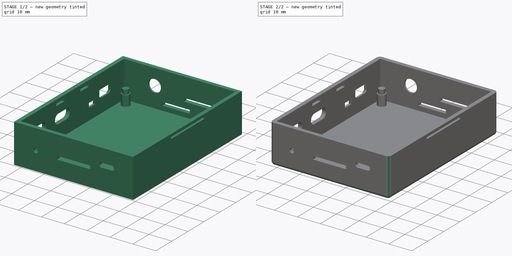
[diagram: build sequence overview — one tinted view per stage of 2, left to right]
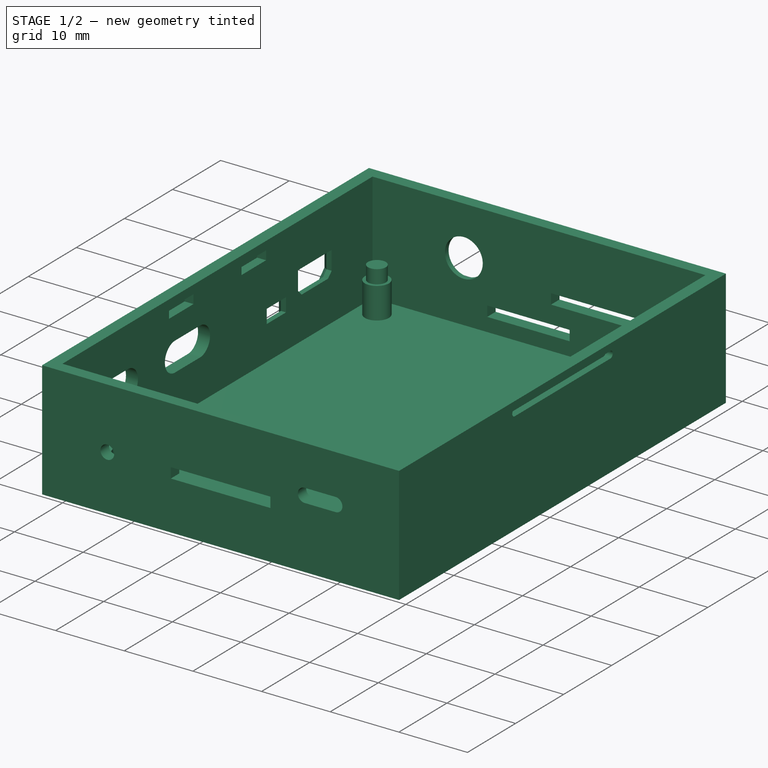
[diagram: stage 1 of 2 — iso view after this stage's code; geometry added in this stage tinted green]
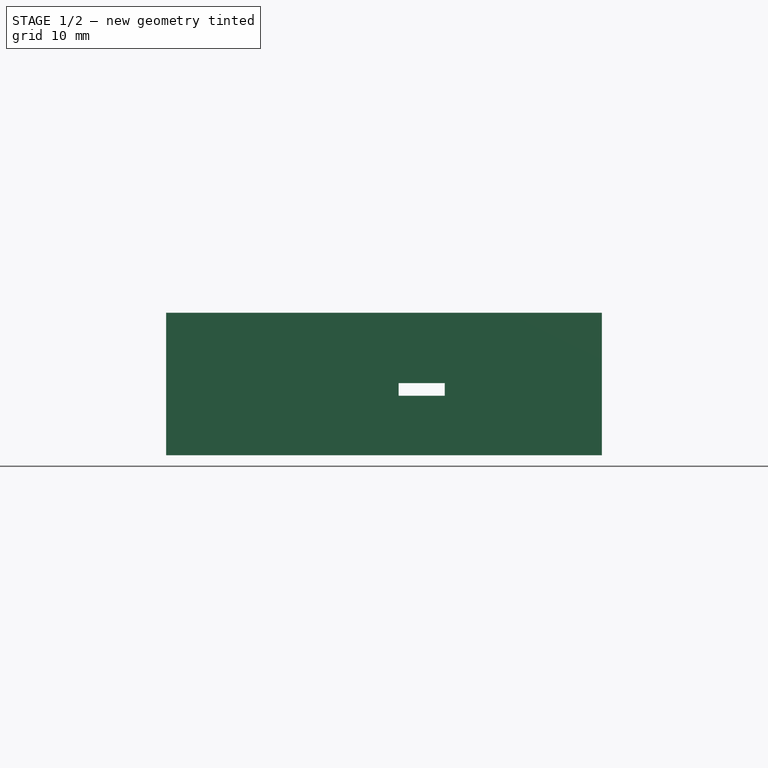
[diagram: stage 1 of 2 — front view after this stage's code; geometry added in this stage tinted green]
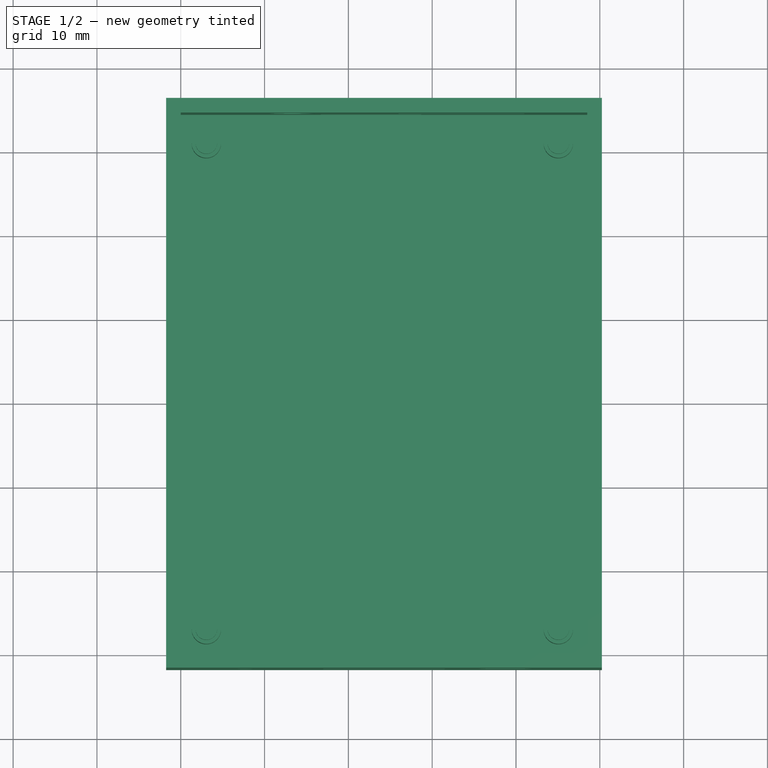
[diagram: stage 1 of 2 — top view after this stage's code; geometry added in this stage tinted green]
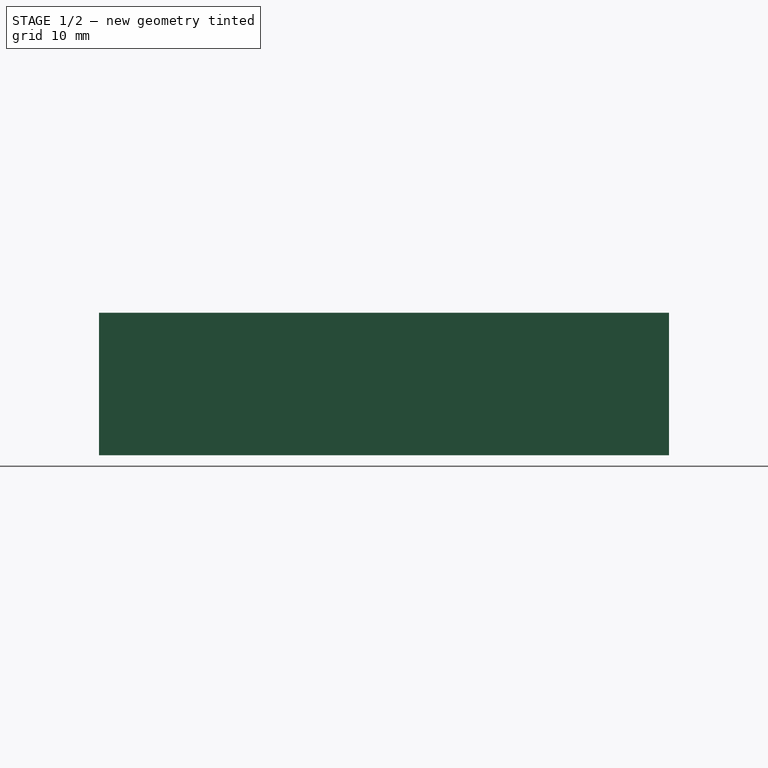
[diagram: stage 1 of 2 — right view after this stage's code; geometry added in this stage tinted green]
FCSTD DOCUMENT  (FreeCAD 0.18R4 (GitTag))
Label: coral_dev_mini_bottom
License: All rights reserved
LicenseURL: http://en.wikipedia.org/wiki/All_rights_reserved
objects: Sketcher::SketchObject×10, PartDesign::Pocket×7, PartDesign::Pad×3, PartDesign::Body×1, PartDesign::Chamfer×1, PartDesign::Fillet×1
note: 33 computed .brp shape members not serialized (recipe doc carries the construction recipe); baked Part::Feature solids carry a one-line shape summary decoded from their .brp

FEATURE [Sketcher::SketchObject] Sketch
  MapMode = 5
  Support = -> [XY_Plane]
  sketch-geometry (4):
    g0: LineSegment StartX=-1.75 StartY=66.25 StartZ=0 EndX=50.25 EndY=66.25 EndZ=0
    g1: LineSegment StartX=50.25 StartY=66.25 StartZ=0 EndX=50.25 EndY=-1.75 EndZ=0
    g2: LineSegment StartX=50.25 StartY=-1.75 StartZ=0 EndX=-1.75 EndY=-1.75 EndZ=0
    g3: LineSegment StartX=-1.75 StartY=-1.75 StartZ=0 EndX=-1.75 EndY=66.25 EndZ=0
  constraints (12):
    c: Coincident(g0,g1)
    c: Coincident(g1,g2)
    c: Coincident(g2,g3)
    c: Coincident(g3,g0)
    c: Horizontal(g0)
    c: Horizontal(g2)
    c: Vertical(g1)
    c: Vertical(g3)
    c: Distance(g1) = 68
    c: Distance(g0) = 52
    c: DistanceX(g2,g-1) = 1.75
    c: DistanceY(g2,g-1) = 1.75
FEATURE [PartDesign::Pad] Pad  label="outer_shell"
  Length = 17
  Length2 = 100
  Profile = -> Sketch
  Type = 0
FEATURE [Sketcher::SketchObject] Sketch001  label="inner_pocket001"
  MapMode = 5
  Placement = pos=(0,0,17) rot=(0,0,1;0rad)
  sketch-geometry (4):
    g0: LineSegment StartX=0 StartY=0 StartZ=0 EndX=48.5 EndY=0 EndZ=0
    g1: LineSegment StartX=48.5 StartY=0 StartZ=0 EndX=48.5 EndY=64.5 EndZ=0
    g2: LineSegment StartX=48.5 StartY=64.5 StartZ=0 EndX=0 EndY=64.5 EndZ=0
    g3: LineSegment StartX=0 StartY=64.5 StartZ=0 EndX=0 EndY=0 EndZ=0
  constraints (11):
    c: Coincident(g0,g1)
    c: Coincident(g1,g2)
    c: Coincident(g2,g3)
    c: Coincident(g3,g0)
    c: Horizontal(g0)
    c: Horizontal(g2)
    c: Vertical(g1)
    c: Vertical(g3)
    c: Coincident(g0,g-1)
    c: Distance(g1) = 64.5
    c: Distance(g2) = 48.5
FEATURE [PartDesign::Pocket] Pocket  label="inner_pocket"
  BaseFeature = -> Pad
  Length = 16
  Length2 = 100
  Profile = -> Sketch001
  Type = 0
FEATURE [Sketcher::SketchObject] Sketch002  label="standoffs_4x"
  MapMode = 5
  Placement = pos=(0,0,1) rot=(0,0,1;0rad)
  Support = -> [Pocket]
  sketch-geometry (4):
    g0: Circle CenterX=3.05 CenterY=3.05 CenterZ=0 NormalX=0 NormalY=0 NormalZ=1 AngleXU=0 Radius=1.75
    g1: Circle CenterX=3.05 CenterY=61.05 CenterZ=0 NormalX=0 NormalY=0 NormalZ=1 AngleXU=0 Radius=1.75
    g2: Circle CenterX=45.05 CenterY=3.05 CenterZ=0 NormalX=0 NormalY=0 NormalZ=1 AngleXU=0 Radius=1.75
    g3: Circle CenterX=45.05 CenterY=61.05 CenterZ=0 NormalX=0 NormalY=0 NormalZ=1 AngleXU=0 Radius=1.75
  constraints (12):
    c: Radius(g0) = 1.75
    c: Equal(g0,g1) = 1.75
    c: DistanceX(g-1,g0) = 3.05
    c: DistanceY(g-1,g0) = 3.05
    c: DistanceX(g0,g2) = 42
    c: DistanceY(g-1,g2) = 3.05
    c: DistanceY(g0,g1) = 58
    c: Equal(g0,g2)
    c: DistanceX(g-1,g1) = 3.05
    c: DistanceX(g1,g3) = 42
    c: DistanceY(g1,g3) = 0
    c: Equal(g1,g3)
FEATURE [PartDesign::Pad] Pad001  label="stadoffs_4x"
  BaseFeature = -> Pocket
  Length = 4.55
  Length2 = 100
  Profile = -> Sketch002
  Type = 0
FEATURE [Sketcher::SketchObject] Sketch003  label="screw_hole_stands"
  MapMode = 5
  Placement = pos=(0,0,1) rot=(0,0,1;0rad)
  Support = -> [Pad001]
  sketch-geometry (4):
    g0: Circle CenterX=3.05 CenterY=61.05 CenterZ=0 NormalX=0 NormalY=0 NormalZ=1 AngleXU=0 Radius=1.3
    g1: Circle CenterX=45.05 CenterY=61.05 CenterZ=0 NormalX=0 NormalY=0 NormalZ=1 AngleXU=0 Radius=1.3
    g2: Circle CenterX=3.05 CenterY=3.05 CenterZ=0 NormalX=0 NormalY=0 NormalZ=1 AngleXU=0 Radius=1.3
    g3: Circle CenterX=45.05 CenterY=3.05 CenterZ=0 NormalX=0 NormalY=0 NormalZ=1 AngleXU=0 Radius=1.3
  constraints (12):
    c: Radius(g0) = 1.3
    c: DistanceX(g-1,g0) = 3.05
    c: Equal(g0,g1) = 1.35
    c: Equal(g0,g2) = 1.35
    c: Equal(g0,g3) = 1.35
    c: DistanceX(g0,g1) = 42
    c: DistanceY(g1,g0) = 0
    c: DistanceY(g2,g0) = 58
    c: DistanceX(g-1,g2) = 3.05
    c: DistanceX(g2,g3) = 42
    c: DistanceY(g2,g3) = 0
    c: DistanceY(g-1,g2) = 3.05
FEATURE [PartDesign::Pad] Pad002  label="screw_stands_4x"
  BaseFeature = -> Pad001
  Length = 6.55
  Length2 = 100
  Profile = -> Sketch003
  Type = 0
FEATURE [Sketcher::SketchObject] Sketch004  label="USB_C"
  MapMode = 5
  Placement = pos=(-1.75,0,0) rot=(0.57735,-0.57735,-0.57735;2.0944rad)
  Support = -> [Pad002]
  sketch-geometry (12):
    g0: ArcOfCircle CenterX=-28.6 CenterY=9 CenterZ=0 NormalX=0 NormalY=0 NormalZ=1 AngleXU=0 Radius=2.1 StartAngle=1.5708 EndAngle=4.71239
    g1: ArcOfCircle CenterX=-23.4 CenterY=9 CenterZ=0 NormalX=0 NormalY=0 NormalZ=1 AngleXU=0 Radius=2.1 StartAngle=4.71239 EndAngle=7.85398
    g2: LineSegment StartX=-28.6 StartY=6.9 StartZ=0 EndX=-23.4 EndY=6.9 EndZ=0
    g3: LineSegment StartX=-28.6 StartY=11.1 StartZ=0 EndX=-23.4 EndY=11.1 EndZ=0
    g4: ArcOfCircle CenterX=-13.6 CenterY=9 CenterZ=0 NormalX=0 NormalY=0 NormalZ=1 AngleXU=0 Radius=2.1 StartAngle=1.5708 EndAngle=4.71239
    g5: ArcOfCircle CenterX=-8.4 CenterY=9 CenterZ=0 NormalX=0 NormalY=0 NormalZ=1 AngleXU=0 Radius=2.1 StartAngle=4.71239 EndAngle=7.85398
    g6: LineSegment StartX=-13.6 StartY=6.9 StartZ=0 EndX=-8.4 EndY=6.9 EndZ=0
    g7: LineSegment StartX=-13.6 StartY=11.1 StartZ=0 EndX=-8.4 EndY=11.1 EndZ=0
    g8: LineSegment StartX=-42.5 StartY=8 StartZ=0 EndX=-46.5 EndY=8 EndZ=0
    g9: LineSegment StartX=-46.5 StartY=8 StartZ=0 EndX=-46.5 EndY=6 EndZ=0
    g10: LineSegment StartX=-46.5 StartY=6 StartZ=0 EndX=-42.5 EndY=6 EndZ=0
    g11: LineSegment StartX=-42.5 StartY=6 StartZ=0 EndX=-42.5 EndY=8 EndZ=0
  constraints (32):
    c: Tangent(g0,g3) = 1.5708
    c: Tangent(g0,g2) = -1.5708
    c: Tangent(g2,g1) = -1.5708
    c: Tangent(g3,g1) = 1.5708
    c: Horizontal(g2)
    c: Equal(g0,g1)
    c: DistanceY(g1,g1) = 4.2
    c: Distance(g2) = 5.2
    c: DistanceY(g-1,g1) = 9
    c: Tangent(g4,g7) = 1.5708
    c: Tangent(g4,g6) = -1.5708
    c: Tangent(g6,g5) = -1.5708
    c: Tangent(g7,g5) = 1.5708
    c: Horizontal(g6)
    c: Equal(g4,g5)
    c: Equal(g1,g5) = 4.2
    c: Equal(g2,g6) = 5.2
    c: DistanceY(g1,g4) = 0
    c: DistanceX(g1,g4) = 9.8
    c: DistanceX(g5,g-1) = 8.4
    c: Coincident(g8,g9)
    c: Coincident(g9,g10)
    c: Coincident(g10,g11)
    c: Coincident(g11,g8)
    c: Horizontal(g8)
    c: Horizontal(g10)
    c: Vertical(g9)
    c: Vertical(g11)
    c: Distance(g10) = 4
    c: Distance(g11) = 2
    c: DistanceX(g10,g-1) = 42.5
    c: DistanceY(g-1,g10) = 6
FEATURE [PartDesign::Pocket] Pocket001  label="USB_PWR"
  BaseFeature = -> Pad002
  Length = 5
  Length2 = 100
  Profile = -> Sketch004
  Type = 0
FEATURE [Sketcher::SketchObject] Sketch005  label="miniHDMI"
  MapMode = 5
  Placement = pos=(-1.75,0,0) rot=(0.57735,-0.57735,-0.57735;2.0944rad)
  Support = -> [Pocket001]
  sketch-geometry (6):
    g0: LineSegment StartX=-56 StartY=10.6 StartZ=0 EndX=-49 EndY=10.6 EndZ=0
    g1: LineSegment StartX=-49.75 StartY=7.1 StartZ=0 EndX=-55.25 EndY=7.1 EndZ=0
    g2: LineSegment StartX=-56 StartY=10.6 StartZ=0 EndX=-56 EndY=7.85 EndZ=0
    g3: LineSegment StartX=-55.25 StartY=7.1 StartZ=0 EndX=-56 EndY=7.85 EndZ=0
    g4: LineSegment StartX=-49 StartY=10.6 StartZ=0 EndX=-49 EndY=7.85 EndZ=0
    g5: LineSegment StartX=-49 StartY=7.85 StartZ=0 EndX=-49.75 EndY=7.1 EndZ=0
  constraints (18):
    c: Horizontal(g0)
    c: Horizontal(g1)
    c: Coincident(g2,g0)
    c: Vertical(g2)
    c: Coincident(g3,g1)
    c: Coincident(g3,g2)
    c: Coincident(g4,g0)
    c: Vertical(g4)
    c: Coincident(g5,g4)
    c: Coincident(g5,g1)
    c: Angle(g4,g5) = 2.35619
    c: Angle(g3,g2) = 2.35619
    c: DistanceX(g1,g4) = 0.75
    c: DistanceX(g2,g1) = 0.75
    c: Distance(g0) = 7
    c: DistanceY(g1,g0) = 3.5
    c: DistanceY(g-1,g1) = 7.1
    c: DistanceX(g4,g-1) = 49
FEATURE [PartDesign::Pocket] Pocket002  label="mini_hdmi"
  BaseFeature = -> Pocket001
  Length = 5
  Length2 = 100
  Profile = -> Sketch005
  Type = 0
FEATURE [Sketcher::SketchObject] Sketch006  label="audio_sd"
  MapMode = 5
  Placement = pos=(0,66.25,0) rot=(0,0.707107,0.707107;3.14159rad)
  Support = -> [Pocket002]
  sketch-geometry (9):
    g0: Circle CenterX=-13.3 CenterY=9.85 CenterZ=0 NormalX=0 NormalY=0 NormalZ=1 AngleXU=0 Radius=2.75
    g1: LineSegment StartX=-16.7 StartY=4.5 StartZ=0 EndX=-28.7 EndY=4.5 EndZ=0
    g2: LineSegment StartX=-28.7 StartY=4.5 StartZ=0 EndX=-28.7 EndY=3 EndZ=0
    g3: LineSegment StartX=-28.7 StartY=3 StartZ=0 EndX=-16.7 EndY=3 EndZ=0
    g4: LineSegment StartX=-16.7 StartY=3 StartZ=0 EndX=-16.7 EndY=4.5 EndZ=0
    g5: LineSegment StartX=-41 StartY=8.6 StartZ=0 EndX=-26 EndY=8.6 EndZ=0
    g6: LineSegment StartX=-26 StartY=8.6 StartZ=0 EndX=-26 EndY=7.1 EndZ=0
    g7: LineSegment StartX=-26 StartY=7.1 StartZ=0 EndX=-41 EndY=7.1 EndZ=0
    g8: LineSegment StartX=-41 StartY=7.1 StartZ=0 EndX=-41 EndY=8.6 EndZ=0
  constraints (27):
    c: Radius(g0) = 2.75
    c: DistanceY(g-1,g0) = 9.85
    c: DistanceX(g0,g-1) = 13.3
    c: Coincident(g1,g2)
    c: Coincident(g2,g3)
    c: Coincident(g3,g4)
    c: Coincident(g4,g1)
    c: Horizontal(g1)
    c: Horizontal(g3)
    c: Vertical(g2)
    c: Vertical(g4)
    c: Distance(g1) = 12
    c: Distance(g2) = 1.5
    c: DistanceX(g3,g-1) = 16.7
    c: DistanceY(g-1,g3) = 3
    c: Coincident(g5,g6)
    c: Coincident(g6,g7)
    c: Coincident(g7,g8)
    c: Coincident(g8,g5)
    c: Horizontal(g5)
    c: Horizontal(g7)
    c: Vertical(g6)
    c: Vertical(g8)
    c: DistanceX(g6,g-1) = 26
    c: Distance(g5) = 15
    c: Distance(g8) = 1.5
    c: DistanceY(g-1,g6) = 7.1
FEATURE [PartDesign::Pocket] Pocket003  label="audio_sd_slot"
  BaseFeature = -> Pocket002
  Length = 5
  Length2 = 100
  Profile = -> Sketch006
  Type = 0
FEATURE [Sketcher::SketchObject] Sketch009  label="latch"
  MapMode = 5
  Placement = pos=(50.25,0,0) rot=(0.57735,0.57735,0.57735;2.0944rad)
  sketch-geometry (4):
    g0: LineSegment StartX=22.3 StartY=16 StartZ=0 EndX=42.2 EndY=16 EndZ=0
    g1: LineSegment StartX=42.2 StartY=15 StartZ=0 EndX=22.3 EndY=15 EndZ=0
    g2: ArcOfCircle CenterX=22.3 CenterY=15.5 CenterZ=0 NormalX=0 NormalY=0 NormalZ=1 AngleXU=0 Radius=0.5 StartAngle=1.5708 EndAngle=4.71239
    g3: ArcOfCircle CenterX=42.2 CenterY=15.5 CenterZ=0 NormalX=0 NormalY=0 NormalZ=1 AngleXU=0 Radius=0.5 StartAngle=4.71239 EndAngle=7.85398
  constraints (14):
    c: Horizontal(g0)
    c: Horizontal(g1)
    c: Distance(g0) = 19.9
    c: DistanceY(g-1,g1) = 15
    c: DistanceX(g-1,g1) = 22.3
    c: Coincident(g2,g0)
    c: Coincident(g2,g1)
    c: Coincident(g3,g0)
    c: Coincident(g3,g1)
    c: Radius(g3) = 0.5
    c: Equal(g3,g2)
    c: DistanceX(g-1,g0) = 22.3
    c: DistanceX(g1,g2) = 0
    c: DistanceX(g3,g1) = 0
FEATURE [PartDesign::Body] Body
  Group = -> [Sketch,Pad,Sketch001,Sketch002,Sketch003,Sketch004,Pocket,Pad001,Pad002,Pocket001,Sketch005,Pocket002,Sketch006,Pocket003,Sketch007,Pocket004,Sketch008,Sketch009,Pocket006,Pocket007,Chamfer,Fillet]
  Origin = -> Origin
  Tip = -> Fillet
FEATURE [Sketcher::SketchObject] Sketch007  label="mic_camera_speaker"
  MapMode = 5
  Placement = pos=(0,-1.75,0) rot=(1,0,0;1.5708rad)
  Support = -> [Pocket007]
  sketch-geometry (9):
    g0: LineSegment StartX=17 StartY=8.6 StartZ=0 EndX=31.5 EndY=8.6 EndZ=0
    g1: LineSegment StartX=31.5 StartY=8.6 StartZ=0 EndX=31.5 EndY=7.1 EndZ=0
    g2: LineSegment StartX=31.5 StartY=7.1 StartZ=0 EndX=17 EndY=7.1 EndZ=0
    g3: LineSegment StartX=17 StartY=7.1 StartZ=0 EndX=17 EndY=8.6 EndZ=0
    g4: ArcOfCircle CenterX=36.5 CenterY=10.1 CenterZ=0 NormalX=0 NormalY=0 NormalZ=1 AngleXU=0 Radius=1 StartAngle=1.5708 EndAngle=4.71239
    g5: ArcOfCircle CenterX=41 CenterY=10.1 CenterZ=0 NormalX=0 NormalY=0 NormalZ=1 AngleXU=0 Radius=1 StartAngle=4.71239 EndAngle=7.85398
    g6: LineSegment StartX=36.5 StartY=9.1 StartZ=0 EndX=41 EndY=9.1 EndZ=0
    g7: LineSegment StartX=36.5 StartY=11.1 StartZ=0 EndX=41 EndY=11.1 EndZ=0
    g8: Circle CenterX=7.75 CenterY=8.1 CenterZ=0 NormalX=0 NormalY=0 NormalZ=1 AngleXU=0 Radius=1
  constraints (25):
    c: Coincident(g0,g1)
    c: Coincident(g1,g2)
    c: Coincident(g2,g3)
    c: Coincident(g3,g0)
    c: Horizontal(g0)
    c: Horizontal(g2)
    c: Vertical(g1)
    c: Vertical(g3)
    c: DistanceX(g-1,g2) = 17
    c: Distance(g1) = 1.5
    c: Distance(g2) = 14.5
    c: DistanceY(g-1,g2) = 7.1
    c: Tangent(g4,g7) = 1.5708
    c: Tangent(g4,g6) = -1.5708
    c: Tangent(g6,g5) = -1.5708
    c: Tangent(g7,g5) = 1.5708
    c: Horizontal(g6)
    c: Equal(g4,g5)
    c: Distance(g6) = 4.5
    c: DistanceY(g5,g5) = 2
    c: DistanceX(g-1,g5) = 41
    c: DistanceY(g-1,g5) = 10.1
    c: Radius(g8) = 1
    c: DistanceX(g-1,g8) = 7.75
    c: DistanceY(g-1,g8) = 8.1
FEATURE [PartDesign::Pocket] Pocket004  label="mic_cam_speaker"
  BaseFeature = -> Pocket003
  Length = 5
  Length2 = 100
  Profile = -> Sketch007
  Type = 0
FEATURE [Sketcher::SketchObject] Sketch008  label="lid_slots_x2"
  MapMode = 5
  Placement = pos=(0,0,0) rot=(0.57735,0.57735,0.57735;2.0944rad)
  Support = -> [Pocket006]
  sketch-geometry (8):
    g0: LineSegment StartX=22.15 StartY=15.75 StartZ=0 EndX=27.25 EndY=15.75 EndZ=0
    g1: LineSegment StartX=27.25 StartY=15.75 StartZ=0 EndX=27.25 EndY=14.45 EndZ=0
    g2: LineSegment StartX=27.25 StartY=14.45 StartZ=0 EndX=22.15 EndY=14.45 EndZ=0
    g3: LineSegment StartX=22.15 StartY=14.45 StartZ=0 EndX=22.15 EndY=15.75 EndZ=0
    g4: LineSegment StartX=37.25 StartY=15.75 StartZ=0 EndX=42.35 EndY=15.75 EndZ=0
    g5: LineSegment StartX=42.35 StartY=15.75 StartZ=0 EndX=42.35 EndY=14.45 EndZ=0
    g6: LineSegment StartX=42.35 StartY=14.45 StartZ=0 EndX=37.25 EndY=14.45 EndZ=0
    g7: LineSegment StartX=37.25 StartY=14.45 StartZ=0 EndX=37.25 EndY=15.75 EndZ=0
  constraints (24):
    c: Coincident(g0,g1)
    c: Coincident(g1,g2)
    c: Coincident(g2,g3)
    c: Coincident(g3,g0)
    c: Horizontal(g0)
    c: Horizontal(g2)
    c: Vertical(g1)
    c: Vertical(g3)
    c: Distance(g1) = 1.3
    c: Distance(g0) = 5.1
    c: Coincident(g4,g5)
    c: Coincident(g5,g6)
    c: Coincident(g6,g7)
    c: Coincident(g7,g4)
    c: Horizontal(g4)
    c: Horizontal(g6)
    c: Vertical(g5)
    c: Vertical(g7)
    c: Equal(g1,g5) = 1.6
    c: Equal(g0,g4) = 5.1
    c: DistanceX(g-1,g2) = 22.15
    c: DistanceX(g1,g6) = 10
    c: DistanceY(g4,g0) = 0
    c: DistanceY(g-1,g0) = 15.75
FEATURE [PartDesign::Pocket] Pocket006  label="lid_latch"
  BaseFeature = -> Pocket004
  Length = 1
  Length2 = 100
  Profile = -> Sketch009
  Type = 0
FEATURE [PartDesign::Pocket] Pocket007  label="lid_slots"
  BaseFeature = -> Pocket006
  Length = 1.3
  Length2 = 100
  Profile = -> Sketch008
  Type = 0
FEATURE [PartDesign::Chamfer] Chamfer
  Base = -> Pocket007 [Edge24,Edge25,Edge26,Edge21,Edge22,Edge23,Edge19,Edge17,Edge18,Edge20,Edge5]
  BaseFeature = -> Pocket007
  Size = 1
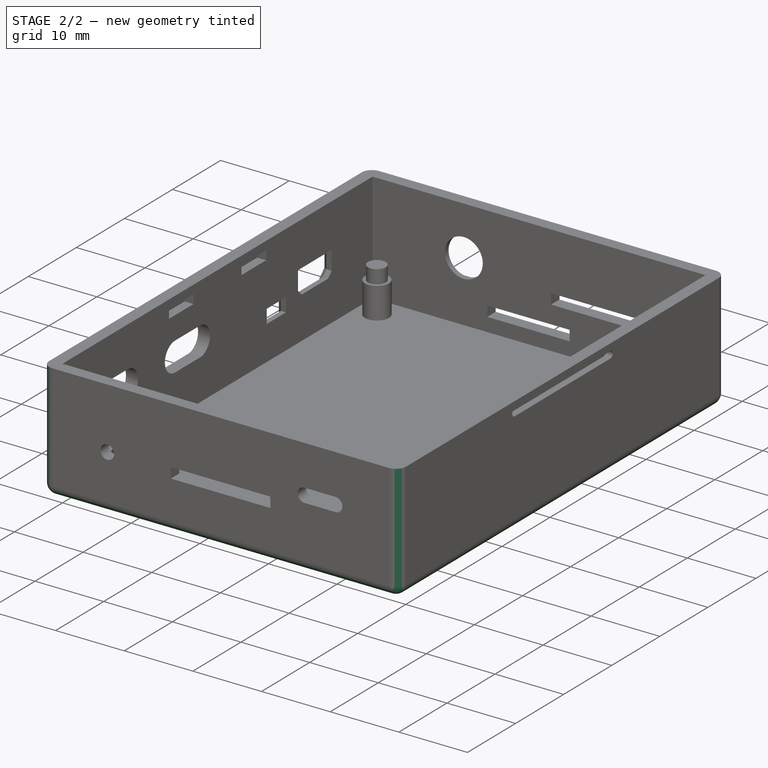
[diagram: stage 2 of 2 — iso view after this stage's code; geometry added in this stage tinted green]
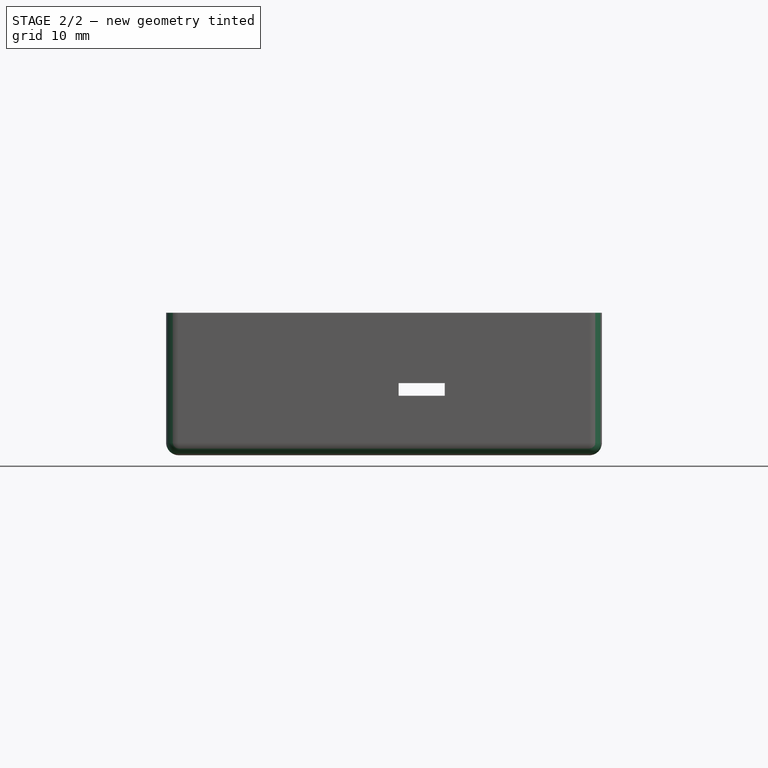
[diagram: stage 2 of 2 — front view after this stage's code; geometry added in this stage tinted green]
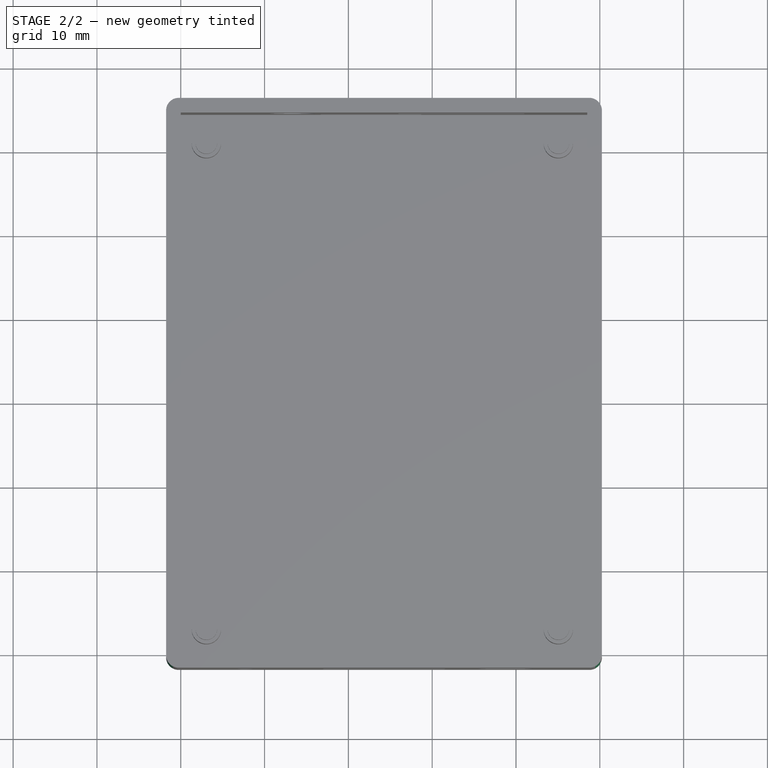
[diagram: stage 2 of 2 — top view after this stage's code; geometry added in this stage tinted green]
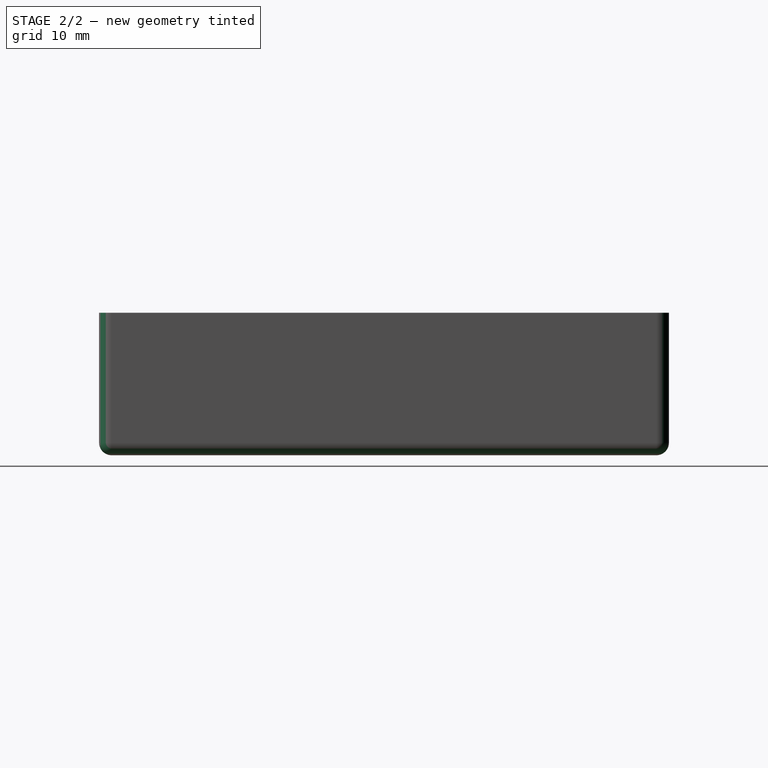
[diagram: stage 2 of 2 — right view after this stage's code; geometry added in this stage tinted green]
FEATURE [PartDesign::Fillet] Fillet
  Base = -> Chamfer [Edge2,Edge23,Edge3,Edge22,Edge38,Edge45,Edge37,Edge5]
  BaseFeature = -> Chamfer
  Radius = 1.5
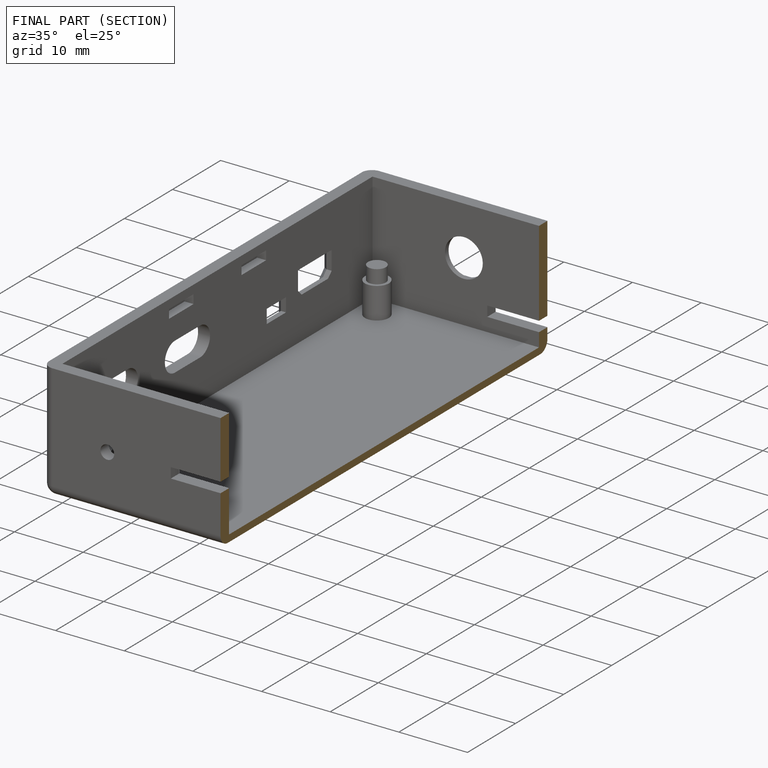
[diagram: finished part — half-section view (interior)]
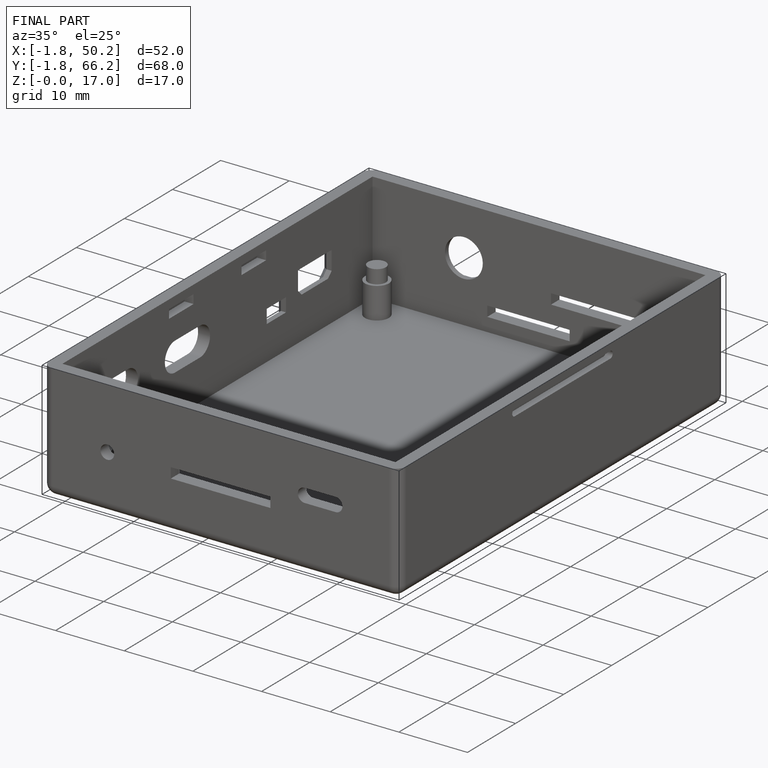
[diagram: finished part — iso view with bounding-box wireframe]
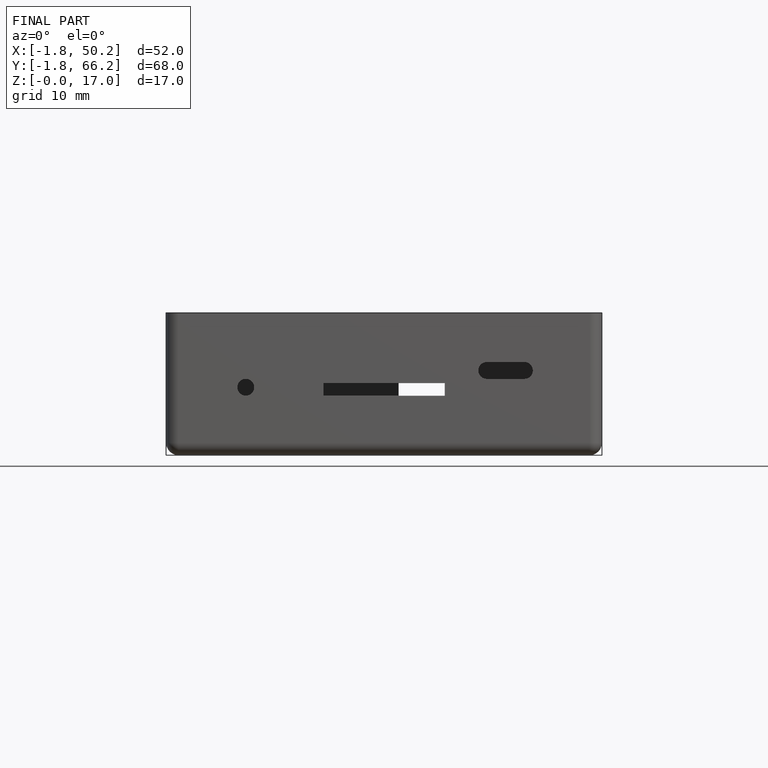
[diagram: finished part — front view with bounding-box wireframe]
